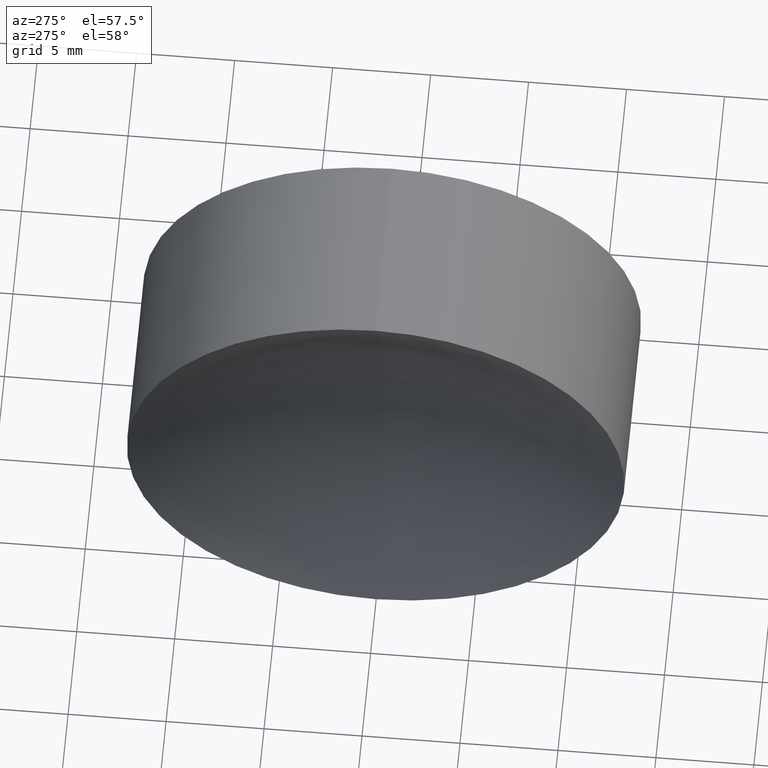
[diagram: clean part render]
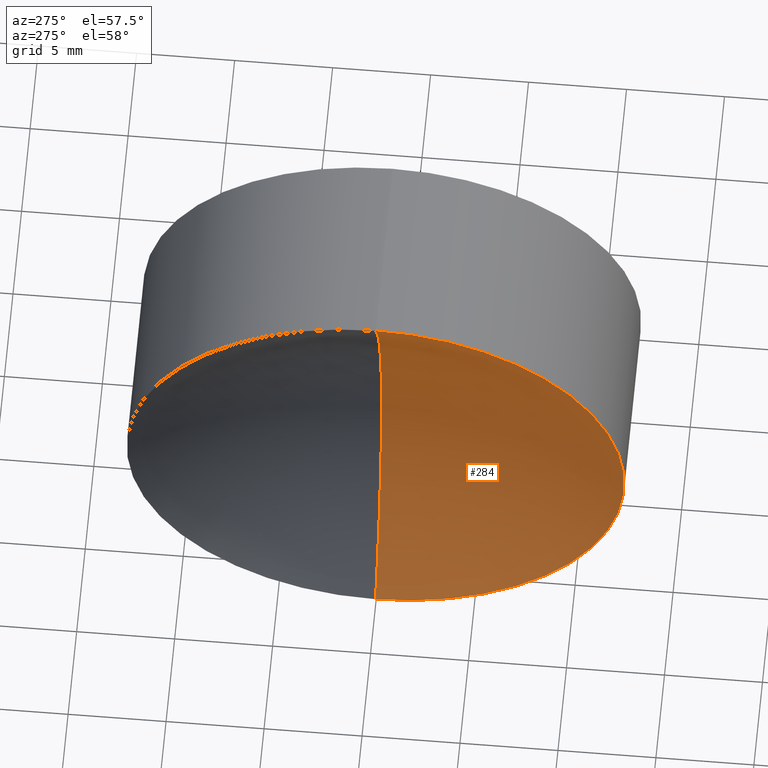
[diagram: same view with one face highlighted and labeled with its STEP entity id]
A machine part, auxiliary view. The second image highlights one B-rep face of the part: STEP entity #284.
In plain terms, the highlighted spherical surface has radius 24.43 mm.
Its self-contained STEP definition (entity closure, byte-faithful):
#7 = CARTESIAN_POINT ( 'NONE',  ( 156.4787913146524800, 0.0000000000000000000, -6.431185812211329500E-014 ) ) ;
#12 = VERTEX_POINT ( 'NONE', #7 ) ;
#25 = VERTEX_POINT ( 'NONE', #46 ) ;
#46 = CARTESIAN_POINT ( 'NONE',  ( 152.9182642356440200, 0.0000000000000000000, 12.69999999999993700 ) ) ;
#49 = AXIS2_PLACEMENT_3D ( 'NONE', #98, #175, #127 ) ;
#55 = VERTEX_POINT ( 'NONE', #249 ) ;
#60 = EDGE_CURVE ( 'NONE', #12, #55, #178, .T. ) ;
#77 = DIRECTION ( 'NONE',  ( 0.0000000000000000000, -1.224646799147353200E-016, 1.000000000000000000 ) ) ;
#89 = EDGE_LOOP ( 'NONE', ( #230, #205, #323 ) ) ;
#94 = CIRCLE ( 'NONE', #49, 24.43000000000000000 ) ;
#98 = CARTESIAN_POINT ( 'NONE',  ( 132.0487913146524800, 0.0000000000000000000, -6.053013926205872400E-014 ) ) ;
#112 = DIRECTION ( 'NONE',  ( -1.000000000000000000, -0.0000000000000000000, 2.160304922313981000E-016 ) ) ;
#118 = DIRECTION ( 'NONE',  ( 0.0000000000000000000, 0.0000000000000000000, 1.000000000000000000 ) ) ;
#127 = DIRECTION ( 'NONE',  ( 0.0000000000000000000, 0.0000000000000000000, -1.000000000000000000 ) ) ;
#134 = CIRCLE ( 'NONE', #222, 12.69999999999999000 ) ;
#148 = DIRECTION ( 'NONE',  ( -0.0000000000000000000, 1.000000000000000000, 0.0000000000000000000 ) ) ;
#151 = AXIS2_PLACEMENT_3D ( 'NONE', #202, #148, #162 ) ;
#162 = DIRECTION ( 'NONE',  ( 0.0000000000000000000, 0.0000000000000000000, 1.000000000000000000 ) ) ;
#175 = DIRECTION ( 'NONE',  ( 0.0000000000000000000, -1.000000000000000000, 0.0000000000000000000 ) ) ;
#178 = CIRCLE ( 'NONE', #201, 24.43000000000000000 ) ;
#188 = CARTESIAN_POINT ( 'NONE',  ( 152.9182642356440200, 0.0000000000000000000, -5.253961766177316900E-014 ) ) ;
#191 = DIRECTION ( 'NONE',  ( 2.645610508294088600E-032, 1.000000000000000000, 1.224646799147353200E-016 ) ) ;
#199 = FACE_OUTER_BOUND ( 'NONE', #89, .T. ) ;
#201 = AXIS2_PLACEMENT_3D ( 'NONE', #274, #191, #77 ) ;
#202 = CARTESIAN_POINT ( 'NONE',  ( 132.0487913146524800, 0.0000000000000000000, -6.053013926205872400E-014 ) ) ;
#203 = EDGE_CURVE ( 'NONE', #55, #25, #134, .T. ) ;
#205 = ORIENTED_EDGE ( 'NONE', *, *, #60, .T. ) ;
#208 = EDGE_CURVE ( 'NONE', #12, #25, #94, .T. ) ;
#222 = AXIS2_PLACEMENT_3D ( 'NONE', #188, #112, #118 ) ;
#230 = ORIENTED_EDGE ( 'NONE', *, *, #208, .F. ) ;
#249 = CARTESIAN_POINT ( 'NONE',  ( 152.9182642356440200, 1.555301434917137200E-015, -12.70000000000005400 ) ) ;
#274 = CARTESIAN_POINT ( 'NONE',  ( 132.0487913146524800, 0.0000000000000000000, -6.053013926205872400E-014 ) ) ;
#284 = ADVANCED_FACE ( 'NONE', ( #199 ), #329, .F. ) ;
#323 = ORIENTED_EDGE ( 'NONE', *, *, #203, .T. ) ;
#329 = SPHERICAL_SURFACE ( 'NONE', #151, 24.43000000000000000 ) ;